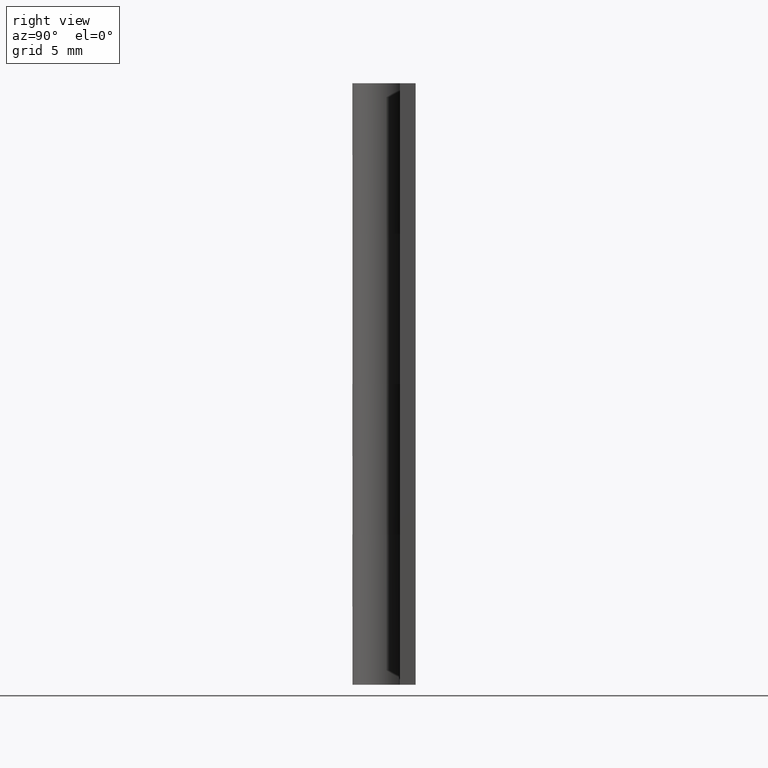
[diagram: clean part render]
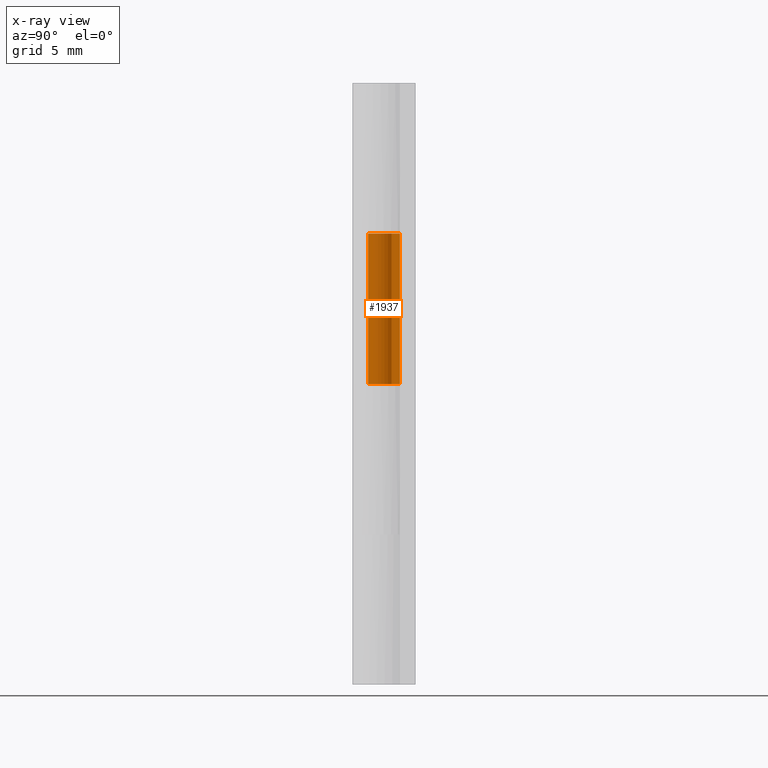
[diagram: x-ray — body ghosted, one internal face saturated and labeled with its STEP entity id]
A machine part, right view, then the same camera in x-ray: the body is ghosted and one INTERNAL B-rep face — a face not visible from any outside direction — is saturated and labeled: STEP entity #1937.
In plain terms, the highlighted face is a freeform B-spline surface patch.
Its self-contained STEP definition (entity closure, byte-faithful):
#1379=CARTESIAN_POINT('',(0.879985795339902,0.475000000000000,28.500000000000000));
#1380=VERTEX_POINT('',#1379);
#1386=CARTESIAN_POINT('',(0.0,1.0,28.500000000000000));
#1387=VERTEX_POINT('',#1386);
#1388=CARTESIAN_POINT('',(0.879985795339902,0.475000000000000,28.500000000000000));
#1389=CARTESIAN_POINT('',(1.241772259107791,-0.195246208551572,28.500000000000004));
#1390=CARTESIAN_POINT('',(0.691759022314384,-0.722128420051896,28.500000000000000));
#1391=CARTESIAN_POINT('',(0.141745785520977,-1.249010631552219,28.500000000000004));
#1392=CARTESIAN_POINT('',(-0.512347538297979,-0.858778201865884,28.500000000000000));
#1393=CARTESIAN_POINT('',(-1.166440862116937,-0.468545772179548,28.500000000000004));
#1394=CARTESIAN_POINT('',(-0.964048287656247,0.265727113910226,28.500000000000000));
#1395=CARTESIAN_POINT('',(-0.761655713195557,1.0,28.500000000000004));
#1396=CARTESIAN_POINT('',(0.0,1.0,28.500000000000000));
#1404=(BOUNDED_CURVE()B_SPLINE_CURVE(2,(#1388,#1389,#1390,#1391,#1392,#1393,#1394,#1395,#1396),.UNSPECIFIED.,.F.,.U.)B_SPLINE_CURVE_WITH_KNOTS((3,2,2,2,3),(0.0,0.250000000000000,0.500000000000000,0.750000000000000,1.0),.UNSPECIFIED.)CURVE()GEOMETRIC_REPRESENTATION_ITEM()RATIONAL_B_SPLINE_CURVE((1.0,0.795527219493534,1.0,0.795527219493534,1.0,0.795527219493534,1.0,0.795527219493534,1.0))REPRESENTATION_ITEM(''));
#1405=EDGE_CURVE('',#1380,#1387,#1404,.T.);
#1463=CARTESIAN_POINT('',(0.0,1.0,19.0));
#1464=VERTEX_POINT('',#1463);
#1470=CARTESIAN_POINT('',(0.879985795339902,0.475000000000000,19.0));
#1471=VERTEX_POINT('',#1470);
#1472=CARTESIAN_POINT('',(0.879985795339902,0.475000000000000,19.0));
#1473=CARTESIAN_POINT('',(1.241772259107791,-0.195246208551572,18.999999999999996));
#1474=CARTESIAN_POINT('',(0.691759022314384,-0.722128420051896,19.0));
#1475=CARTESIAN_POINT('',(0.141745785520977,-1.249010631552219,18.999999999999996));
#1476=CARTESIAN_POINT('',(-0.512347538297979,-0.858778201865884,19.0));
#1477=CARTESIAN_POINT('',(-1.166440862116937,-0.468545772179548,18.999999999999996));
#1478=CARTESIAN_POINT('',(-0.964048287656247,0.265727113910226,19.0));
#1479=CARTESIAN_POINT('',(-0.761655713195557,1.0,18.999999999999996));
#1480=CARTESIAN_POINT('',(0.0,1.0,19.0));
#1488=(BOUNDED_CURVE()B_SPLINE_CURVE(2,(#1472,#1473,#1474,#1475,#1476,#1477,#1478,#1479,#1480),.UNSPECIFIED.,.F.,.U.)B_SPLINE_CURVE_WITH_KNOTS((3,2,2,2,3),(0.0,0.250000000000000,0.500000000000000,0.750000000000000,1.0),.UNSPECIFIED.)CURVE()GEOMETRIC_REPRESENTATION_ITEM()RATIONAL_B_SPLINE_CURVE((1.0,0.795527219493534,1.0,0.795527219493534,1.0,0.795527219493534,1.0,0.795527219493534,1.0))REPRESENTATION_ITEM(''));
#1489=EDGE_CURVE('',#1471,#1464,#1488,.T.);
#1735=CARTESIAN_POINT('',(0.879985795339902,0.475000000000000,19.0));
#1736=CARTESIAN_POINT('',(0.879985795339902,0.475000000000000,28.500000000000000));
#1737=QUASI_UNIFORM_CURVE('',1,(#1735,#1736),.UNSPECIFIED.,.F.,.U.);
#1738=EDGE_CURVE('',#1471,#1380,#1737,.T.);
#1872=CARTESIAN_POINT('',(0.0,1.0,19.0));
#1873=CARTESIAN_POINT('',(0.0,1.0,28.500000000000000));
#1874=QUASI_UNIFORM_CURVE('',1,(#1872,#1873),.UNSPECIFIED.,.F.,.U.);
#1875=EDGE_CURVE('',#1464,#1387,#1874,.T.);
#1909=CARTESIAN_POINT('',(0.867250195739734,0.497872572039666,18.762499999999999));
#1910=CARTESIAN_POINT('',(0.867250195739734,0.497872572039666,28.743437500000010));
#1911=CARTESIAN_POINT('',(1.471217921301096,-0.554186042211214,18.762500000000003));
#1912=CARTESIAN_POINT('',(1.471217921301096,-0.554186042211214,28.743437500000010));
#1913=CARTESIAN_POINT('',(0.323246112017932,-0.946314932284855,18.762499999999999));
#1914=CARTESIAN_POINT('',(0.323246112017932,-0.946314932284855,28.743437500000010));
#1915=CARTESIAN_POINT('',(-0.824725697265232,-1.338443822358497,18.762500000000003));
#1916=CARTESIAN_POINT('',(-0.824725697265232,-1.338443822358497,28.743437500000010));
#1917=CARTESIAN_POINT('',(-0.990606727526765,-0.136741768961475,18.762499999999999));
#1918=CARTESIAN_POINT('',(-0.990606727526765,-0.136741768961475,28.743437500000010));
#1919=CARTESIAN_POINT('',(-1.156487757788298,1.064960284435547,18.762500000000003));
#1920=CARTESIAN_POINT('',(-1.156487757788298,1.064960284435547,28.743437500000010));
#1921=CARTESIAN_POINT('',(0.054787236967325,0.998498051407956,18.762499999999999));
#1922=CARTESIAN_POINT('',(0.054787236967325,0.998498051407956,28.743437500000010));
#1930=(BOUNDED_SURFACE()B_SPLINE_SURFACE(1,2,((#1909,#1911,#1913,#1915,#1917,#1919,#1921),(#1910,#1912,#1914,#1916,#1918,#1920,#1922)),.UNSPECIFIED.,.F.,.F.,.U.)B_SPLINE_SURFACE_WITH_KNOTS((2,2),(3,2,2,3),(0.0,9.980937500000009),(0.0,1.0,2.0,3.0),.UNSPECIFIED.)GEOMETRIC_REPRESENTATION_ITEM()RATIONAL_B_SPLINE_SURFACE(((1.0,0.636078220277764,1.0,0.636078220277764,1.0,0.636078220277764,1.0),(1.0,0.636078220277764,1.0,0.636078220277764,1.0,0.636078220277764,1.0)))REPRESENTATION_ITEM('')SURFACE());
#1931=ORIENTED_EDGE('',*,*,#1405,.F.);
#1932=ORIENTED_EDGE('',*,*,#1738,.F.);
#1933=ORIENTED_EDGE('',*,*,#1489,.T.);
#1934=ORIENTED_EDGE('',*,*,#1875,.T.);
#1935=EDGE_LOOP('',(#1931,#1932,#1933,#1934));
#1936=FACE_OUTER_BOUND('',#1935,.T.);
#1937=ADVANCED_FACE('',(#1936),#1930,.F.);